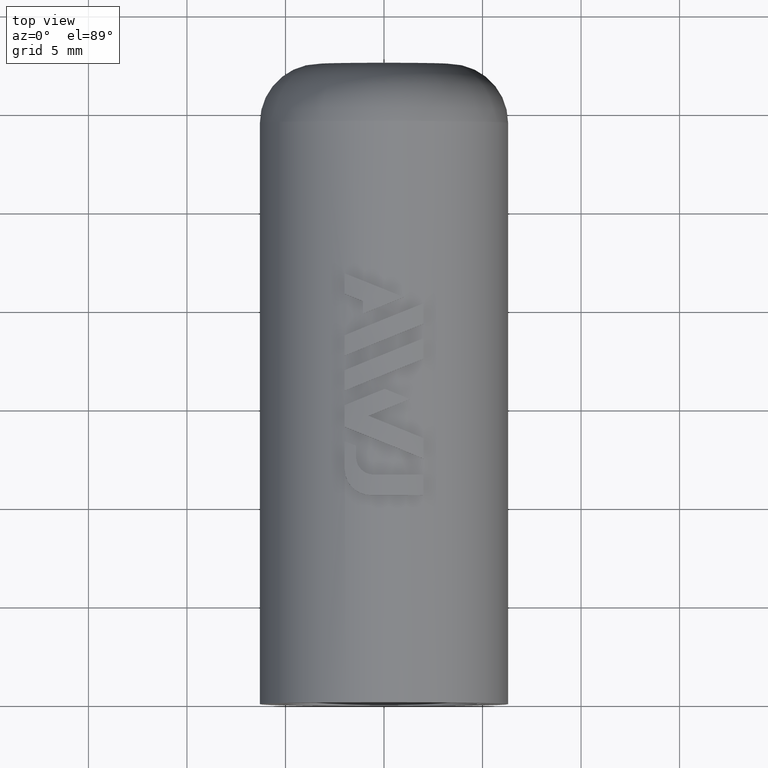
[diagram: clean part render]
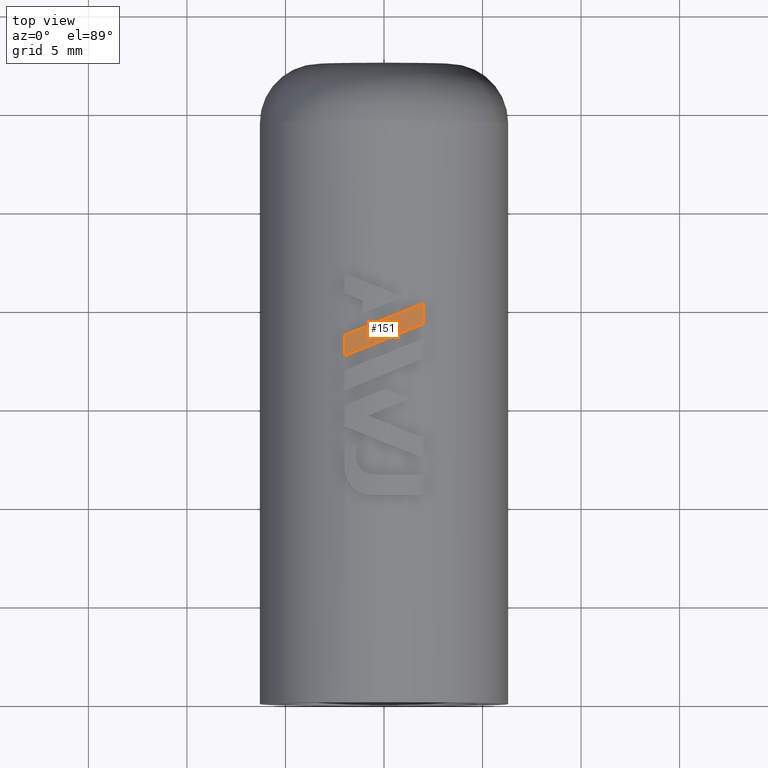
[diagram: same view with one face highlighted and labeled with its STEP entity id]
A machine part, top view. The second image highlights one B-rep face of the part: STEP entity #151.
In plain terms, the highlighted cylindrical surface (partial cylindrical patch) has radius 6.5 mm, axis along (-0, 1, 0).
Its self-contained STEP definition (entity closure, byte-faithful):
#151=ADVANCED_FACE('',(#308),#309,.T.);
#308=FACE_OUTER_BOUND('',#2379,.T.);
#309=CYLINDRICAL_SURFACE('',#2380,6.5);
#2379=EDGE_LOOP('',(#2973,#2974,#2975,#2976));
#2380=AXIS2_PLACEMENT_3D('',#2977,#2978,#2979);
#2973=ORIENTED_EDGE('',*,*,#3286,.F.);
#2974=ORIENTED_EDGE('',*,*,#3285,.F.);
#2975=ORIENTED_EDGE('',*,*,#3287,.F.);
#2976=ORIENTED_EDGE('',*,*,#3282,.F.);
#2977=CARTESIAN_POINT('',(0.0,35.1175433022803,0.0));
#2978=DIRECTION('',(-0.0,1.0,0.0));
#2979=DIRECTION('',(1.0,0.0,-6.12323399573677E-17));
#3282=EDGE_CURVE('',#3626,#3624,#3628,.T.);
#3285=EDGE_CURVE('',#3631,#3629,#3633,.F.);
#3286=EDGE_CURVE('',#3629,#3626,#3634,.T.);
#3287=EDGE_CURVE('',#3624,#3631,#3635,.T.);
#3624=VERTEX_POINT('',#5047);
#3626=VERTEX_POINT('',#5050);
#3628=LINE('',#5053,#5054);
#3629=VERTEX_POINT('',#5055);
#3631=VERTEX_POINT('',#5058);
#3633=LINE('',#5061,#5062);
#3634=ELLIPSE('',#5063,7.01044281733171,6.5);
#3635=ELLIPSE('',#5064,7.01058144433271,6.5);
#5047=CARTESIAN_POINT('',(1.99609020296564,19.1981312487228,6.18592142704906));
#5050=CARTESIAN_POINT('',(1.99609020296564,20.2301924776245,6.18592142704905));
#5053=CARTESIAN_POINT('',(1.99609020296564,35.1175433022803,6.18592142704905));
#5054=VECTOR('',#5484,1000.0);
#5055=CARTESIAN_POINT('',(-1.999014984,18.6161193688078,6.1849768870824));
#5058=CARTESIAN_POINT('',(-1.999014984,17.5838306964236,6.1849768870824));
#5061=CARTESIAN_POINT('',(-1.999014984,35.1175433022803,6.1849768870824));
#5062=VECTOR('',#5487,1000.0);
#5063=AXIS2_PLACEMENT_3D('',#5488,#5489,#5490);
#5064=AXIS2_PLACEMENT_3D('',#5491,#5492,#5493);
#5484=DIRECTION('',(0.0,-1.0,0.0));
#5487=DIRECTION('',(0.0,-1.0,0.0));
#5488=CARTESIAN_POINT('',(0.0,19.4237467475119,0.0));
#5489=DIRECTION('',(-0.374595787424494,0.927188220397468,2.62061806629809E-16));
#5490=DIRECTION('',(-0.927188220397468,-0.374595787424493,6.48647497596899E-16));
#5491=CARTESIAN_POINT('',(0.0,18.3915718801236,0.0));
#5492=DIRECTION('',(0.374641164459301,-0.927169886208875,-2.62069552514497E-16));
#5493=DIRECTION('',(-0.927169886208875,-0.374641164459301,6.48575277450785E-16));